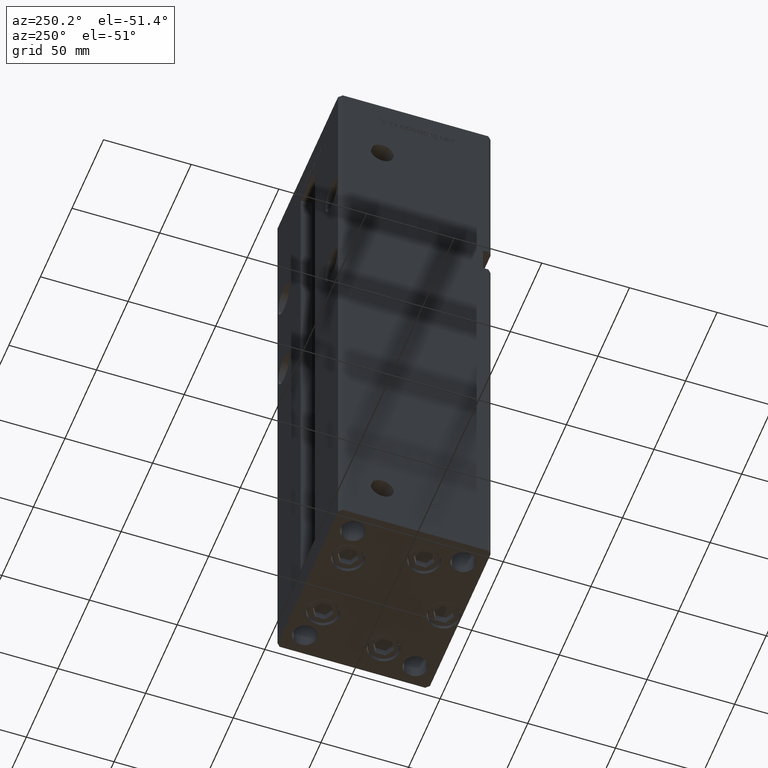
[diagram: clean part render]
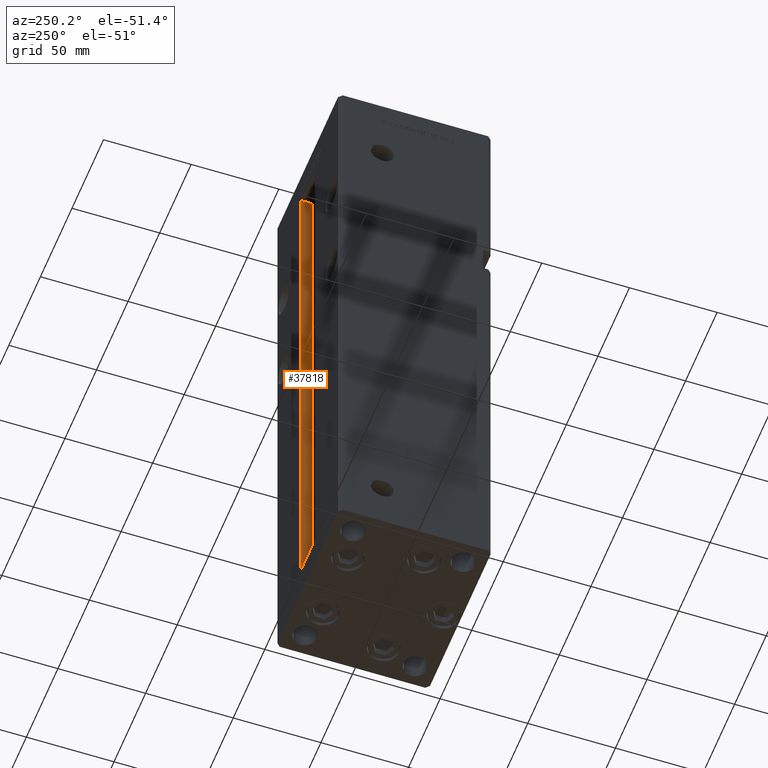
[diagram: same view with one face highlighted and labeled with its STEP entity id]
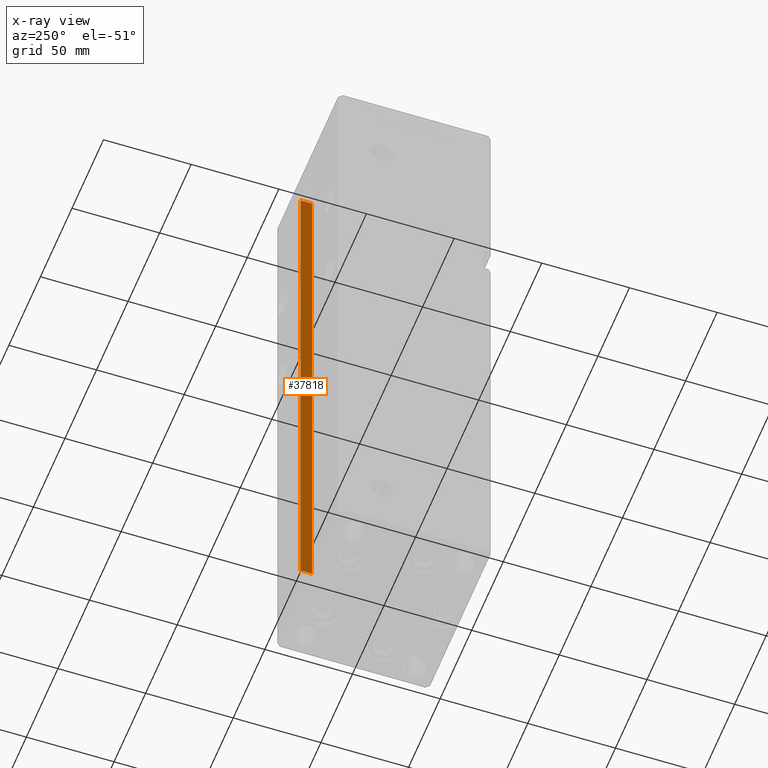
[diagram: x-ray of the same camera — body ghosted, the highlighted face saturated]
A machine part, auxiliary view. The second image highlights one B-rep face of the part: STEP entity #37818.
The next image is the same camera in x-ray: the body ghosted, the highlighted face saturated — about 0% of this face is hidden behind the body in this view.
In plain terms, the highlighted planar face has unit normal (1, 0, 0).
Its self-contained STEP definition (entity closure, byte-faithful):
#1860 = EDGE_CURVE ( 'NONE', #25069, #49453, #32266, .T. ) ;
#2292 = CARTESIAN_POINT ( 'NONE',  ( 11.24999999999999645, 37.00000000000000000, 0.000000000000000000 ) ) ;
#3293 = VECTOR ( 'NONE', #33733, 1000.000000000000000 ) ;
#3869 = CARTESIAN_POINT ( 'NONE',  ( 11.24999999999999645, 0.000000000000000000, 318.5000000000000000 ) ) ;
#3990 = DIRECTION ( 'NONE',  ( 0.000000000000000000, 0.000000000000000000, -1.000000000000000000 ) ) ;
#5357 = EDGE_CURVE ( 'NONE', #12799, #9154, #16551, .T. ) ;
#8163 = EDGE_LOOP ( 'NONE', ( #15544, #52382, #8297, #13792 ) ) ;
#8297 = ORIENTED_EDGE ( 'NONE', *, *, #1860, .T. ) ;
#9154 = VERTEX_POINT ( 'NONE', #25759 ) ;
#12066 = DIRECTION ( 'NONE',  ( 1.000000000000000000, -0.000000000000000000, 0.000000000000000000 ) ) ;
#12370 = CARTESIAN_POINT ( 'NONE',  ( 11.24999999999999645, 37.00000000000000000, 0.000000000000000000 ) ) ;
#12799 = VERTEX_POINT ( 'NONE', #34889 ) ;
#13792 = ORIENTED_EDGE ( 'NONE', *, *, #31831, .F. ) ;
#15184 = DIRECTION ( 'NONE',  ( -0.000000000000000000, -1.000000000000000000, 0.000000000000000000 ) ) ;
#15352 = VECTOR ( 'NONE', #32562, 1000.000000000000000 ) ;
#15544 = ORIENTED_EDGE ( 'NONE', *, *, #5357, .F. ) ;
#16551 = LINE ( 'NONE', #24603, #3293 ) ;
#16915 = CARTESIAN_POINT ( 'NONE',  ( 11.24999999999999645, 37.00000000000000000, 0.000000000000000000 ) ) ;
#20745 = LINE ( 'NONE', #36584, #15352 ) ;
#24179 = FACE_OUTER_BOUND ( 'NONE', #8163, .T. ) ;
#24603 = CARTESIAN_POINT ( 'NONE',  ( 11.24999999999999645, 43.50000000000000000, 0.000000000000000000 ) ) ;
#25069 = VERTEX_POINT ( 'NONE', #2292 ) ;
#25759 = CARTESIAN_POINT ( 'NONE',  ( 11.24999999999998934, 43.50000000000000000, 318.5000000000000000 ) ) ;
#26110 = CARTESIAN_POINT ( 'NONE',  ( 11.24999999999999645, 37.00000000000000000, 318.5000000000000000 ) ) ;
#30656 = VECTOR ( 'NONE', #48904, 1000.000000000000000 ) ;
#31831 = EDGE_CURVE ( 'NONE', #9154, #49453, #32640, .T. ) ;
#32266 = LINE ( 'NONE', #12370, #30656 ) ;
#32562 = DIRECTION ( 'NONE',  ( 0.000000000000000000, 1.000000000000000000, 0.000000000000000000 ) ) ;
#32640 = LINE ( 'NONE', #3869, #34911 ) ;
#33733 = DIRECTION ( 'NONE',  ( -0.000000000000000000, -0.000000000000000000, 1.000000000000000000 ) ) ;
#34889 = CARTESIAN_POINT ( 'NONE',  ( 11.24999999999999645, 43.50000000000000000, 0.000000000000000000 ) ) ;
#34911 = VECTOR ( 'NONE', #15184, 1000.000000000000000 ) ;
#36584 = CARTESIAN_POINT ( 'NONE',  ( 11.24999999999999645, 37.00000000000000000, 0.000000000000000000 ) ) ;
#37558 = EDGE_CURVE ( 'NONE', #25069, #12799, #20745, .T. ) ;
#37818 = ADVANCED_FACE ( 'NONE', ( #24179 ), #48867, .F. ) ;
#45349 = AXIS2_PLACEMENT_3D ( 'NONE', #16915, #12066, #3990 ) ;
#48867 = PLANE ( 'NONE',  #45349 ) ;
#48904 = DIRECTION ( 'NONE',  ( -0.000000000000000000, -0.000000000000000000, 1.000000000000000000 ) ) ;
#49453 = VERTEX_POINT ( 'NONE', #26110 ) ;
#52382 = ORIENTED_EDGE ( 'NONE', *, *, #37558, .F. ) ;